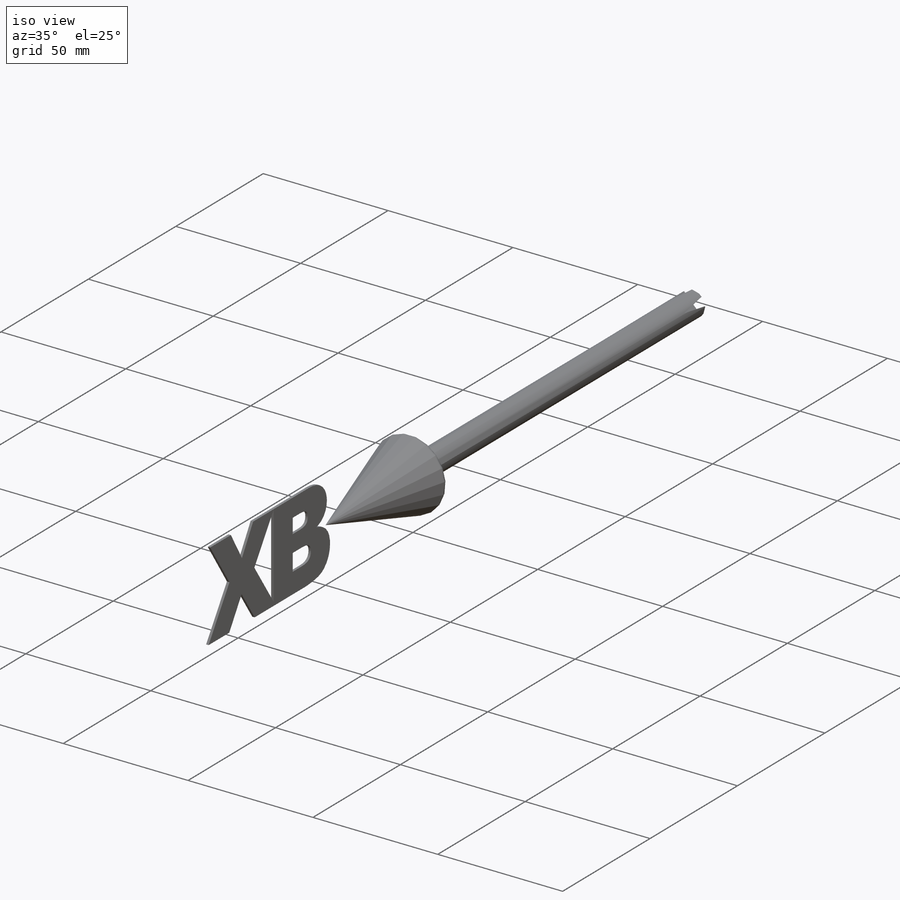
[diagram: iso view]
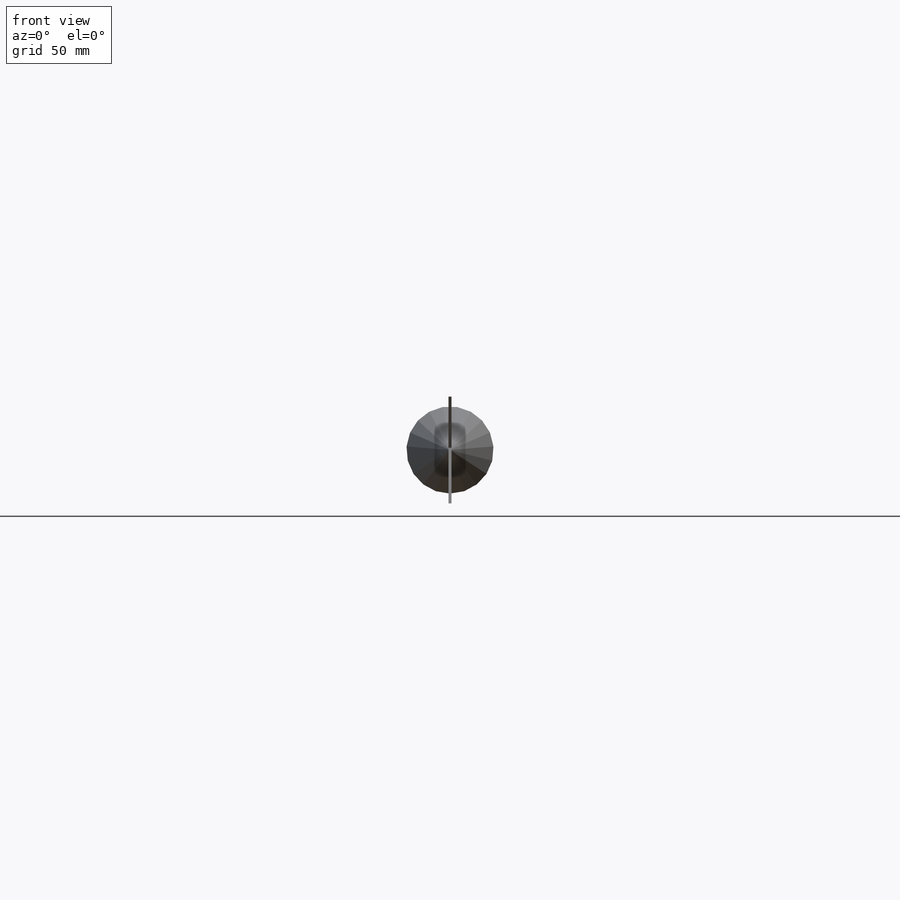
[diagram: front view]
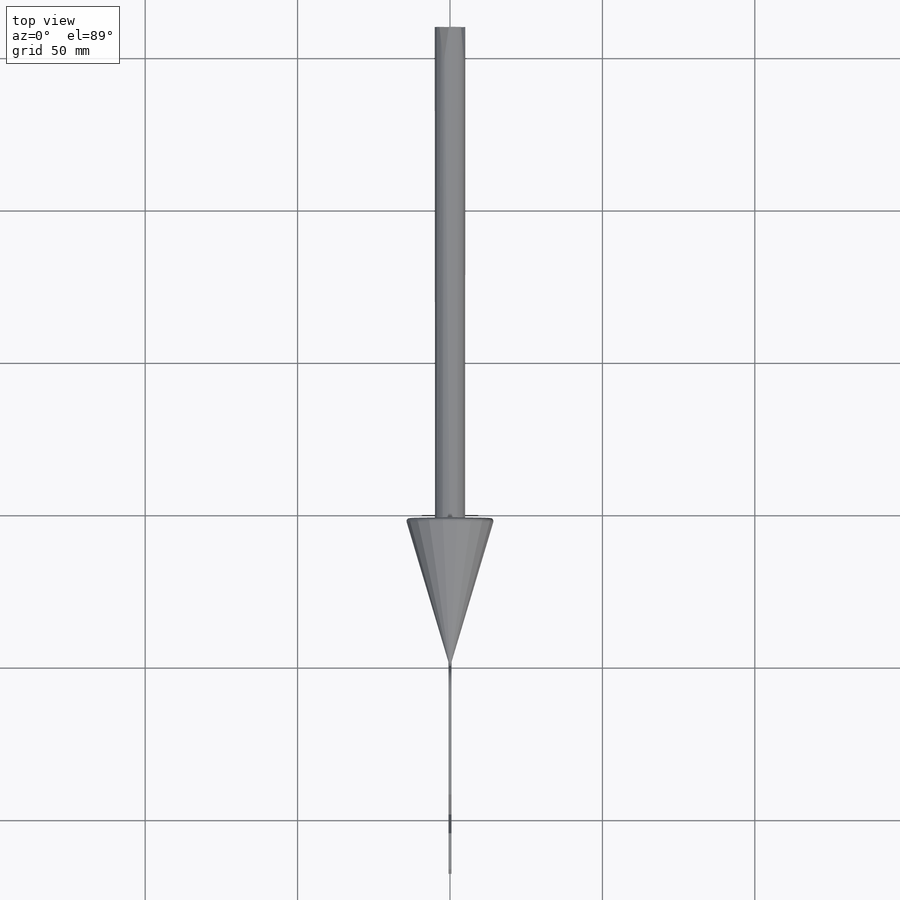
[diagram: top view]
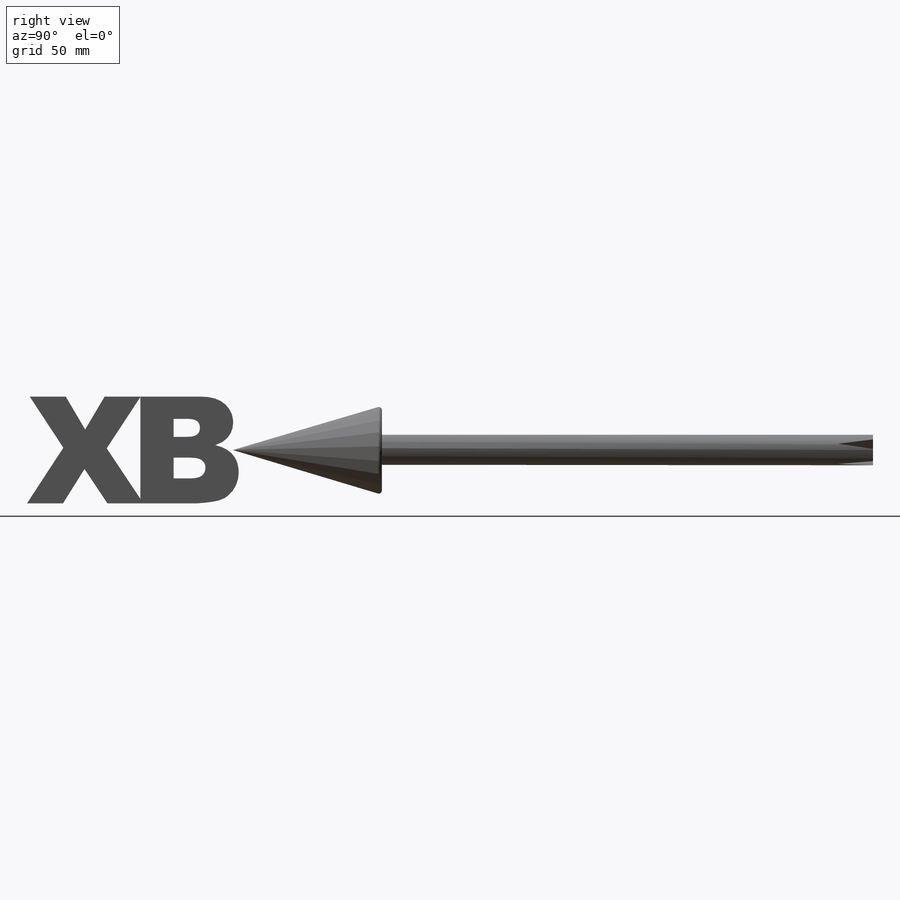
[diagram: right view]
SOLIDWORKS PART (.sldprt)
format: sldprt  version: not decoded by parser v0  size: 1,470,464 bytes
history: native  units: mm
features: sketch x17, extrude x13, material x1, revolve x1, fillet x1, plane x1, cut_extrude x1, pattern_circular x1 + 1 further entry (+13 scaffold rows collapsed)
feature tree (50):
  scaffold x13  (default folders/planes/origin — collapsed)
  material  "Material <not specified>"
  "Design Table"
  sketch  "Sketch1"  dims[c1.Thickness=10.0mm c1.D2=250.0mm c1.D3=50.0mm c1.D4=15.0mm c1.D5=50.0mm c1.D6=50.0mm c2.D5=50.0mm c2.D6=50.0mm c3.D5=50.0mm c3.D6=50.0mm c4.D5=50.0mm c4.D3=50.0mm c4.Length=200.0mm c5.D5=~14.851447mm c6.D5=60.0deg c6.Length=200.0mm c6.TailLength=10.0mm c7.Length=200.0mm c7.Thickness=6.0mm c8.Thickness=10.0mm c8.D1=230.0mm]
  revolve  "Revolve1"  Angle=360deg
  fillet  "Fillet1"  Radius=1mm
  sketch  "Sketch7"  dims[c1.D1=68.0mm c1.D2=17.5mm c1.D3=68.0mm c1.D4=~36.301616mm c2.D3=~36.301616mm c2.D4=68.0mm c3.D3=~36.301616mm c3.D4=~36.301616mm c4.D3=~36.301616mm c4.D4=~36.301616mm c5.D3=~36.301616mm c5.D4=~36.301616mm c6.D3=~36.301616mm c6.D4=~36.301616mm c7.D3=~36.301616mm c7.D4=~36.301616mm c8.D3=~36.301616mm c8.D4=~36.301616mm c9.D3=~36.301616mm c9.D4=~36.301616mm c10.D3=~36.301616mm c10.D4=68.0mm c11.D3=~36.301616mm c11.D4=~36.301616mm c11.D1=68.0mm]
  sketch  "Sketch10"  dims[D1=17.5mm D2=68.0mm]
  extrude  "X"  Depth=1mm
  sketch  "Sketch11"  dims[D1=68.0mm D2=17.5mm]
  extrude  "Y"  Depth=1mm
  extrude  "Z"  Depth=1mm
  sketch  "Sketch8"  dims[D1=17.5mm D2=34.0mm]
  extrude  "0"  Depth=1mm
  sketch  "Sketch12"  dims[D1=17.5mm D2=34.0mm]
  extrude  "1"  Depth=1mm
  sketch  "Sketch13"  dims[D1=34.0mm D2=17.5mm]
  extrude  "2"  Depth=1mm
  sketch  "Sketch21"  dims[D1=34.0mm D2=17.5mm]
  extrude  "3"  Depth=1mm
  sketch  "Sketch14"  dims[D1=34.0mm D2=17.5mm]
  extrude  "4"  Depth=1mm
  sketch  "Sketch16"  dims[D1=34.0mm D2=17.5mm]
  extrude  "5"  Depth=1mm
  sketch  "Sketch17"  dims[D1=34.0mm D2=17.5mm]
  extrude  "6"  Depth=1mm
  sketch  "Sketch18"  dims[D1=34.0mm D2=17.5mm]
  extrude  "7"  Depth=1mm
  sketch  "Sketch19"  dims[D1=34.0mm D2=17.5mm]
  extrude  "B"  Depth=1mm
  sketch  "Sketch20"  dims[D1=34.0mm D2=17.5mm]
  extrude  "T"  Depth=1mm
  sketch  "Sketch23"  dims[c1.D1=~1.234313mm c2.D1=60.0deg]
  sketch  "Sketch25"  dims[c1.D1=~31.500207mm c2.D1=12.0deg]
  plane  "Plane1"
  sketch  "Sketch26"
  cut_extrude  "Cut-Extrude1"  [1 undecoded]
  pattern_circular  "CirPattern1"  Count=4 Angle=360deg
decode coverage: 32 of 34 modeling features carry decoded parameters; 1 rows unclassified (native names shown)
note: ~ marks probable driven/reference dimensions
note: 1 parameter value undecoded
note: suppression state not decoded; provenance and decode notes live in map.json
